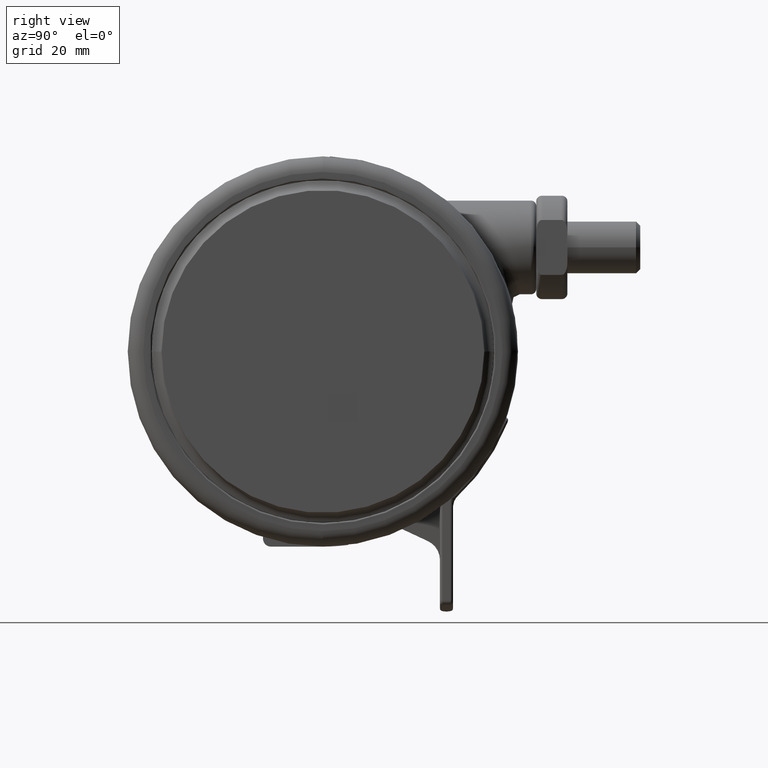
[diagram: clean part render]
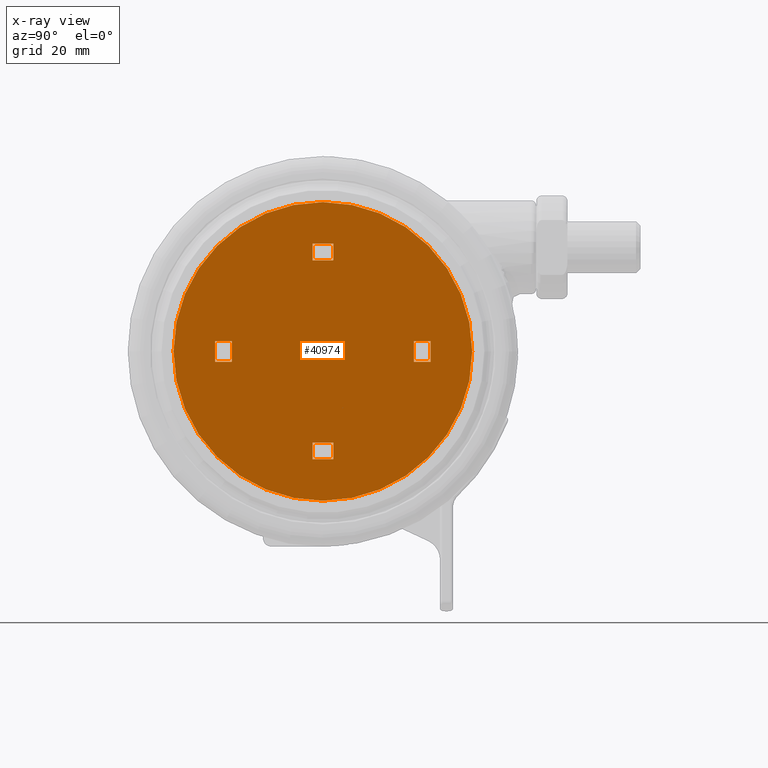
[diagram: x-ray — body ghosted, one internal face saturated and labeled with its STEP entity id]
A machine part, right view, then the same camera in x-ray: the body is ghosted and one INTERNAL B-rep face — a face not visible from any outside direction — is saturated and labeled: STEP entity #40974.
In plain terms, the highlighted planar face has unit normal (1, 0, 0).
Its self-contained STEP definition (entity closure, byte-faithful):
#385 = CARTESIAN_POINT ( 'NONE',  ( 19.69999999999999900, 2.000000000000205200, -1.499999999999994400 ) ) ;
#639 = DIRECTION ( 'NONE',  ( 1.000000000000000000, 0.0000000000000000000, 0.0000000000000000000 ) ) ;
#741 = DIRECTION ( 'NONE',  ( -1.000000000000000000, -0.0000000000000000000, -0.0000000000000000000 ) ) ;
#1190 = ORIENTED_EDGE ( 'NONE', *, *, #5544, .F. ) ;
#1863 = ORIENTED_EDGE ( 'NONE', *, *, #41558, .T. ) ;
#2156 = LINE ( 'NONE', #385, #30877 ) ;
#2406 = VERTEX_POINT ( 'NONE', #18477 ) ;
#2474 = VERTEX_POINT ( 'NONE', #4039 ) ;
#2691 = FACE_OUTER_BOUND ( 'NONE', #22086, .T. ) ;
#3339 = CARTESIAN_POINT ( 'NONE',  ( 2.000000000000000000, 20.69999999999999900, -1.499999999999994400 ) ) ;
#3474 = ORIENTED_EDGE ( 'NONE', *, *, #43345, .T. ) ;
#4027 = DIRECTION ( 'NONE',  ( -3.614007241618350200E-016, -1.000000000000000000, -0.0000000000000000000 ) ) ;
#4039 = CARTESIAN_POINT ( 'NONE',  ( 20.69999999999999900, 2.000000000000214900, -1.499999999999994400 ) ) ;
#4122 = CARTESIAN_POINT ( 'NONE',  ( 17.50000000000000000, -1.999999999999820100, -1.499999999999994400 ) ) ;
#4139 = DIRECTION ( 'NONE',  ( 1.000000000000000000, 1.011304329236755900E-014, 0.0000000000000000000 ) ) ;
#4226 = VECTOR ( 'NONE', #8168, 1000.000000000000000 ) ;
#4432 = CARTESIAN_POINT ( 'NONE',  ( -2.000000000000000000, -19.69999999999999900, -1.499999999999994400 ) ) ;
#5544 = EDGE_CURVE ( 'NONE', #10667, #37050, #34140, .T. ) ;
#5624 = VERTEX_POINT ( 'NONE', #35211 ) ;
#5971 = LINE ( 'NONE', #20936, #24717 ) ;
#6235 = LINE ( 'NONE', #7940, #15003 ) ;
#6456 = CARTESIAN_POINT ( 'NONE',  ( 2.000000000000000000, 17.50000000000000000, -1.499999999999994400 ) ) ;
#6814 = PLANE ( 'NONE',  #17273 ) ;
#6999 = CARTESIAN_POINT ( 'NONE',  ( 28.69999999999999900, 0.0000000000000000000, -1.499999999999994400 ) ) ;
#7172 = VERTEX_POINT ( 'NONE', #36380 ) ;
#7442 = VERTEX_POINT ( 'NONE', #30091 ) ;
#7903 = LINE ( 'NONE', #4122, #46570 ) ;
#7940 = CARTESIAN_POINT ( 'NONE',  ( -20.69999999999999900, -2.000000000000069700, -1.499999999999994400 ) ) ;
#8168 = DIRECTION ( 'NONE',  ( -3.614007241618350200E-016, -1.000000000000000000, -0.0000000000000000000 ) ) ;
#8355 = EDGE_LOOP ( 'NONE', ( #18691, #1863, #28042, #16994 ) ) ;
#8517 = LINE ( 'NONE', #31881, #37195 ) ;
#9478 = ORIENTED_EDGE ( 'NONE', *, *, #14866, .T. ) ;
#9653 = EDGE_CURVE ( 'NONE', #2406, #47948, #13512, .T. ) ;
#10667 = VERTEX_POINT ( 'NONE', #20857 ) ;
#11016 = DIRECTION ( 'NONE',  ( 1.000000000000000000, 3.130080614681300600E-015, 0.0000000000000000000 ) ) ;
#11417 = VECTOR ( 'NONE', #26894, 1000.000000000000000 ) ;
#11453 = VECTOR ( 'NONE', #27650, 1000.000000000000000 ) ;
#11492 = LINE ( 'NONE', #40269, #22629 ) ;
#11721 = VECTOR ( 'NONE', #4027, 1000.000000000000000 ) ;
#12456 = CARTESIAN_POINT ( 'NONE',  ( 0.0000000000000000000, 0.0000000000000000000, -1.499999999999994400 ) ) ;
#13000 = EDGE_CURVE ( 'NONE', #13231, #34751, #30903, .T. ) ;
#13209 = CARTESIAN_POINT ( 'NONE',  ( -2.000000000000000000, 20.69999999999999900, -1.499999999999994400 ) ) ;
#13231 = VERTEX_POINT ( 'NONE', #3339 ) ;
#13332 = EDGE_LOOP ( 'NONE', ( #15951, #42085, #1190, #26361 ) ) ;
#13512 = LINE ( 'NONE', #31071, #32293 ) ;
#13862 = ORIENTED_EDGE ( 'NONE', *, *, #9653, .T. ) ;
#14247 = EDGE_CURVE ( 'NONE', #19159, #7442, #41249, .T. ) ;
#14284 = LINE ( 'NONE', #44335, #25439 ) ;
#14866 = EDGE_CURVE ( 'NONE', #39596, #16751, #28275, .T. ) ;
#15003 = VECTOR ( 'NONE', #15472, 1000.000000000000000 ) ;
#15358 = EDGE_CURVE ( 'NONE', #10667, #7442, #20624, .T. ) ;
#15444 = ORIENTED_EDGE ( 'NONE', *, *, #18718, .F. ) ;
#15472 = DIRECTION ( 'NONE',  ( 3.491481338843135300E-015, -1.000000000000000000, -0.0000000000000000000 ) ) ;
#15890 = DIRECTION ( 'NONE',  ( -1.000000000000000000, -3.130080614681300600E-015, -0.0000000000000000000 ) ) ;
#15951 = ORIENTED_EDGE ( 'NONE', *, *, #14247, .F. ) ;
#16229 = DIRECTION ( 'NONE',  ( 1.000000000000000000, 0.0000000000000000000, 0.0000000000000000000 ) ) ;
#16301 = EDGE_CURVE ( 'NONE', #13231, #45086, #46832, .T. ) ;
#16478 = VERTEX_POINT ( 'NONE', #16853 ) ;
#16751 = VERTEX_POINT ( 'NONE', #34143 ) ;
#16853 = CARTESIAN_POINT ( 'NONE',  ( -2.000000000000000000, 17.50000000000000000, -1.499999999999994400 ) ) ;
#16994 = ORIENTED_EDGE ( 'NONE', *, *, #41312, .T. ) ;
#17273 = AXIS2_PLACEMENT_3D ( 'NONE', #40515, #21878, #48016 ) ;
#18218 = ORIENTED_EDGE ( 'NONE', *, *, #13000, .T. ) ;
#18472 = EDGE_CURVE ( 'NONE', #5624, #2474, #2156, .T. ) ;
#18477 = CARTESIAN_POINT ( 'NONE',  ( -17.50000000000000000, -2.000000000000060000, -1.499999999999994400 ) ) ;
#18691 = ORIENTED_EDGE ( 'NONE', *, *, #18472, .F. ) ;
#18718 = EDGE_CURVE ( 'NONE', #16478, #34751, #11492, .T. ) ;
#18966 = ORIENTED_EDGE ( 'NONE', *, *, #26319, .T. ) ;
#19159 = VERTEX_POINT ( 'NONE', #36760 ) ;
#19336 = EDGE_CURVE ( 'NONE', #20648, #22762, #6235, .T. ) ;
#20299 = ORIENTED_EDGE ( 'NONE', *, *, #19336, .T. ) ;
#20624 = LINE ( 'NONE', #45575, #28234 ) ;
#20647 = ORIENTED_EDGE ( 'NONE', *, *, #48086, .F. ) ;
#20648 = VERTEX_POINT ( 'NONE', #44291 ) ;
#20857 = CARTESIAN_POINT ( 'NONE',  ( 2.000000000000000000, -17.50000000000000000, -1.499999999999994400 ) ) ;
#20936 = CARTESIAN_POINT ( 'NONE',  ( 19.69999999999999900, -1.999999999999794800, -1.499999999999994400 ) ) ;
#21362 = CARTESIAN_POINT ( 'NONE',  ( -17.50000000000000000, 1.999999999999940300, -1.499999999999994400 ) ) ;
#21878 = DIRECTION ( 'NONE',  ( 0.0000000000000000000, 0.0000000000000000000, 1.000000000000000000 ) ) ;
#21957 = EDGE_CURVE ( 'NONE', #2406, #22762, #46833, .T. ) ;
#22086 = EDGE_LOOP ( 'NONE', ( #9478, #3474 ) ) ;
#22090 = ORIENTED_EDGE ( 'NONE', *, *, #16301, .F. ) ;
#22331 = CARTESIAN_POINT ( 'NONE',  ( -19.69999999999999900, 1.999999999999934900, -1.499999999999994400 ) ) ;
#22628 = FACE_BOUND ( 'NONE', #13332, .T. ) ;
#22629 = VECTOR ( 'NONE', #36496, 1000.000000000000000 ) ;
#22734 = CARTESIAN_POINT ( 'NONE',  ( 2.000000000000000000, 19.69999999999999900, -1.499999999999994400 ) ) ;
#22762 = VERTEX_POINT ( 'NONE', #40971 ) ;
#23092 = DIRECTION ( 'NONE',  ( -0.0000000000000000000, -0.0000000000000000000, -1.000000000000000000 ) ) ;
#23175 = LINE ( 'NONE', #22331, #41868 ) ;
#23274 = CARTESIAN_POINT ( 'NONE',  ( -19.69999999999999900, -2.000000000000065300, -1.499999999999994400 ) ) ;
#23595 = CARTESIAN_POINT ( 'NONE',  ( 2.000000000000000000, -19.69999999999999900, -1.499999999999994400 ) ) ;
#24717 = VECTOR ( 'NONE', #35959, 1000.000000000000000 ) ;
#25439 = VECTOR ( 'NONE', #48060, 1000.000000000000000 ) ;
#25494 = CARTESIAN_POINT ( 'NONE',  ( 17.50000000000000000, -1.999999999999820100, -1.499999999999994400 ) ) ;
#25562 = EDGE_CURVE ( 'NONE', #19159, #37050, #41289, .T. ) ;
#26319 = EDGE_CURVE ( 'NONE', #16478, #45086, #14284, .T. ) ;
#26361 = ORIENTED_EDGE ( 'NONE', *, *, #15358, .T. ) ;
#26894 = DIRECTION ( 'NONE',  ( 3.614007241618350200E-016, 1.000000000000000000, 0.0000000000000000000 ) ) ;
#27650 = DIRECTION ( 'NONE',  ( 1.000000000000000000, -0.0000000000000000000, -0.0000000000000000000 ) ) ;
#28042 = ORIENTED_EDGE ( 'NONE', *, *, #34268, .F. ) ;
#28234 = VECTOR ( 'NONE', #741, 1000.000000000000000 ) ;
#28260 = EDGE_LOOP ( 'NONE', ( #22090, #18218, #15444, #18966 ) ) ;
#28275 = CIRCLE ( 'NONE', #47797, 28.69999999999999900 ) ;
#30091 = CARTESIAN_POINT ( 'NONE',  ( -2.000000000000000000, -17.50000000000000000, -1.499999999999994400 ) ) ;
#30443 = CARTESIAN_POINT ( 'NONE',  ( 2.000000000000000000, -20.69999999999999900, -1.499999999999994400 ) ) ;
#30877 = VECTOR ( 'NONE', #4139, 1000.000000000000000 ) ;
#30903 = LINE ( 'NONE', #13209, #33212 ) ;
#31071 = CARTESIAN_POINT ( 'NONE',  ( -17.50000000000000000, 1.999999999999940300, -1.499999999999994400 ) ) ;
#31433 = CARTESIAN_POINT ( 'NONE',  ( 2.000000000000000000, -20.69999999999999900, -1.499999999999994400 ) ) ;
#31460 = FACE_BOUND ( 'NONE', #8355, .T. ) ;
#31881 = CARTESIAN_POINT ( 'NONE',  ( 20.69999999999999900, 2.000000000000214900, -1.499999999999994400 ) ) ;
#32028 = CARTESIAN_POINT ( 'NONE',  ( -2.000000000000000000, 20.69999999999999900, -1.499999999999994400 ) ) ;
#32293 = VECTOR ( 'NONE', #46083, 1000.000000000000000 ) ;
#32588 = FACE_BOUND ( 'NONE', #28260, .T. ) ;
#33212 = VECTOR ( 'NONE', #35649, 1000.000000000000000 ) ;
#34079 = AXIS2_PLACEMENT_3D ( 'NONE', #45465, #23092, #639 ) ;
#34140 = LINE ( 'NONE', #23595, #4226 ) ;
#34143 = CARTESIAN_POINT ( 'NONE',  ( -28.69999999999999900, 3.563722185518798200E-015, -1.499999999999994400 ) ) ;
#34268 = EDGE_CURVE ( 'NONE', #7172, #47420, #5971, .T. ) ;
#34751 = VERTEX_POINT ( 'NONE', #32028 ) ;
#35211 = CARTESIAN_POINT ( 'NONE',  ( 17.50000000000000000, 2.000000000000179900, -1.499999999999994400 ) ) ;
#35614 = DIRECTION ( 'NONE',  ( -1.047444401652940200E-014, 1.000000000000000000, -0.0000000000000000000 ) ) ;
#35649 = DIRECTION ( 'NONE',  ( -1.000000000000000000, -0.0000000000000000000, -0.0000000000000000000 ) ) ;
#35830 = CIRCLE ( 'NONE', #34079, 28.69999999999999900 ) ;
#35959 = DIRECTION ( 'NONE',  ( -1.000000000000000000, -1.011304329236755900E-014, -0.0000000000000000000 ) ) ;
#36380 = CARTESIAN_POINT ( 'NONE',  ( 20.69999999999999900, -1.999999999999784800, -1.499999999999994400 ) ) ;
#36496 = DIRECTION ( 'NONE',  ( 3.614007241618350200E-016, 1.000000000000000000, 0.0000000000000000000 ) ) ;
#36760 = CARTESIAN_POINT ( 'NONE',  ( -2.000000000000000000, -20.69999999999999900, -1.499999999999994400 ) ) ;
#36796 = EDGE_LOOP ( 'NONE', ( #47349, #13862, #20647, #20299 ) ) ;
#37050 = VERTEX_POINT ( 'NONE', #30443 ) ;
#37195 = VECTOR ( 'NONE', #35614, 1000.000000000000000 ) ;
#37850 = DIRECTION ( 'NONE',  ( 1.047444401652940200E-014, -1.000000000000000000, -0.0000000000000000000 ) ) ;
#38635 = DIRECTION ( 'NONE',  ( -0.0000000000000000000, -0.0000000000000000000, -1.000000000000000000 ) ) ;
#39596 = VERTEX_POINT ( 'NONE', #6999 ) ;
#40269 = CARTESIAN_POINT ( 'NONE',  ( -2.000000000000000000, 19.69999999999999900, -1.499999999999994400 ) ) ;
#40515 = CARTESIAN_POINT ( 'NONE',  ( 0.0000000000000000000, 0.0000000000000000000, -1.499999999999994400 ) ) ;
#40971 = CARTESIAN_POINT ( 'NONE',  ( -20.69999999999999900, -2.000000000000069700, -1.499999999999994400 ) ) ;
#40974 = ADVANCED_FACE ( 'NONE', ( #2691, #22628, #32588, #41316, #31460 ), #6814, .F. ) ;
#41249 = LINE ( 'NONE', #4432, #11417 ) ;
#41289 = LINE ( 'NONE', #31433, #11453 ) ;
#41312 = EDGE_CURVE ( 'NONE', #7172, #2474, #8517, .T. ) ;
#41316 = FACE_BOUND ( 'NONE', #36796, .T. ) ;
#41558 = EDGE_CURVE ( 'NONE', #5624, #47420, #7903, .T. ) ;
#41868 = VECTOR ( 'NONE', #11016, 1000.000000000000000 ) ;
#42085 = ORIENTED_EDGE ( 'NONE', *, *, #25562, .T. ) ;
#43345 = EDGE_CURVE ( 'NONE', #16751, #39596, #35830, .T. ) ;
#44291 = CARTESIAN_POINT ( 'NONE',  ( -20.69999999999999900, 1.999999999999930300, -1.499999999999994400 ) ) ;
#44335 = CARTESIAN_POINT ( 'NONE',  ( 2.000000000000000000, 17.50000000000000000, -1.499999999999994400 ) ) ;
#45086 = VERTEX_POINT ( 'NONE', #6456 ) ;
#45465 = CARTESIAN_POINT ( 'NONE',  ( 0.0000000000000000000, 0.0000000000000000000, -1.499999999999994400 ) ) ;
#45575 = CARTESIAN_POINT ( 'NONE',  ( -2.000000000000000000, -17.50000000000000000, -1.499999999999994400 ) ) ;
#45648 = VECTOR ( 'NONE', #15890, 1000.000000000000000 ) ;
#46083 = DIRECTION ( 'NONE',  ( -3.491481338843135300E-015, 1.000000000000000000, -0.0000000000000000000 ) ) ;
#46570 = VECTOR ( 'NONE', #37850, 1000.000000000000000 ) ;
#46832 = LINE ( 'NONE', #22734, #11721 ) ;
#46833 = LINE ( 'NONE', #23274, #45648 ) ;
#47349 = ORIENTED_EDGE ( 'NONE', *, *, #21957, .F. ) ;
#47420 = VERTEX_POINT ( 'NONE', #25494 ) ;
#47797 = AXIS2_PLACEMENT_3D ( 'NONE', #12456, #38635, #16229 ) ;
#47948 = VERTEX_POINT ( 'NONE', #21362 ) ;
#48016 = DIRECTION ( 'NONE',  ( 1.000000000000000000, 0.0000000000000000000, 0.0000000000000000000 ) ) ;
#48060 = DIRECTION ( 'NONE',  ( 1.000000000000000000, -0.0000000000000000000, -0.0000000000000000000 ) ) ;
#48086 = EDGE_CURVE ( 'NONE', #20648, #47948, #23175, .T. ) ;